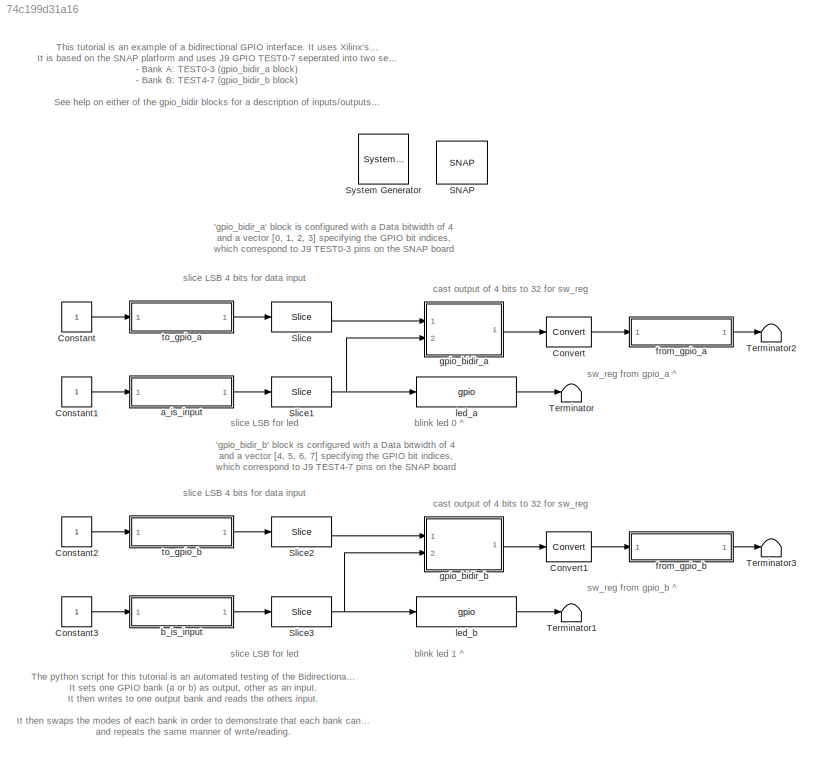
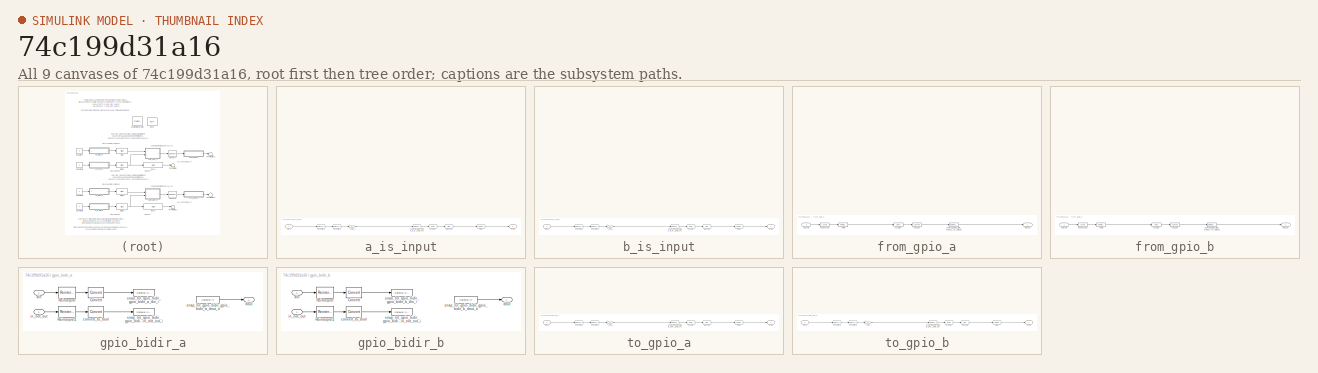
[diagram: thumbnail index - all 9 canvases of the model, root first then tree order]
MODEL slx_74c199d31a16
KIND model
CONFIG AbsTol = auto
CONFIG EnableMultiTasking = off
CONFIG FixedStep = auto
CONFIG MaxStep = auto
CONFIG MinStep = auto
CONFIG RelTol = 1e-3
CONFIG SampleTimeConstraint = Unconstrained
CONFIG Solver = VariableStepDiscrete
CONFIG SolverName = VariableStepDiscrete
CONFIG StartTime = 0.0
CONFIG StopTime = 10.0
BLOCK [Reference]  System Generator  REF=xbsIndex_r4/ System Generator
  AttributesFormatString = System\nGenerator
  Ports = []
  SourceBlock = xbsIndex_r4/ System Generator
  SourceType = Xilinx System Generator Block
  Tag = genX
  UserDataPersistent = on
BLOCK [Constant] Constant
BLOCK [Constant] Constant1
BLOCK [Constant] Constant2
BLOCK [Constant] Constant3
BLOCK [Reference] Convert  REF=xbsIndex_r4/Convert
  Ports = [1, 1]
  SourceBlock = xbsIndex_r4/Convert
  SourceType = Xilinx Type Converter Block
BLOCK [Reference] Convert1  REF=xbsIndex_r4/Convert
  Ports = [1, 1]
  SourceBlock = xbsIndex_r4/Convert
  SourceType = Xilinx Type Converter Block
BLOCK [Reference] SNAP  REF=xps_library/Platforms/SNAP  (lib defined in mdl_00b5cec29cd0, mdl_02ab6ecaa3d1, +5 more)
  Ports = []
  SourceBlock = xps_library/Platforms/SNAP
  SourceProductName = CASPER XPS Blockset
  SourceType = xsg core config
  Tag = xps:xsg
BLOCK [Reference] Slice  REF=xbsIndex_r4/Slice
  Ports = [1, 1]
  SourceBlock = xbsIndex_r4/Slice
  SourceType = Xilinx Bit Slice Extractor Block
BLOCK [Reference] Slice1  REF=xbsIndex_r4/Slice
  Ports = [1, 1]
  SourceBlock = xbsIndex_r4/Slice
  SourceType = Xilinx Bit Slice Extractor Block
BLOCK [Reference] Slice2  REF=xbsIndex_r4/Slice
  Ports = [1, 1]
  SourceBlock = xbsIndex_r4/Slice
  SourceType = Xilinx Bit Slice Extractor Block
BLOCK [Reference] Slice3  REF=xbsIndex_r4/Slice
  Ports = [1, 1]
  SourceBlock = xbsIndex_r4/Slice
  SourceType = Xilinx Bit Slice Extractor Block
BLOCK [Terminator] Terminator
BLOCK [Terminator] Terminator1
BLOCK [Terminator] Terminator2
BLOCK [Terminator] Terminator3
BLOCK [SubSystem] a_is_input
  AncestorBlock = xps_library/Memory/software_register
  AttributesFormatString = 1input:uf32.0 = 32 bits
  Ports = [1, 1]
  RequestExecContextInheritance = off
  Tag = xps:sw_reg
BLOCK [DataTypeConversion] a_is_input/convert1_1
  LockScale = on
  OutDataTypeStr = fixdt('ufix32_En0')
  RndMeth = Floor
  SaturateOnIntegerOverflow = off
BLOCK [DataTypeConversion] a_is_input/convert2_1
  ConvertRealWorld = Stored Integer (SI)
  LockScale = on
  OutDataTypeStr = fixdt('ufix32_En0')
  RndMeth = Floor
  SaturateOnIntegerOverflow = off
BLOCK [Gain] a_is_input/gain_1
  OutDataTypeStr = Inherit: Inherit via internal rule
  ParamDataTypeStr = Inherit: Inherit via internal rule
  SaturateOnIntegerOverflow = off
BLOCK [Outport] a_is_input/in_reg
  IconDisplay = Port number
BLOCK [Reference] a_is_input/io_delay  REF=xbsIndex_r4/Delay
  Ports = [1, 1]
  SourceBlock = xbsIndex_r4/Delay
  SourceType = Xilinx Delay Block
BLOCK [Reference] a_is_input/reint1  REF=xbsIndex_r4/Reinterpret
  Ports = [1, 1]
  SourceBlock = xbsIndex_r4/Reinterpret
  SourceType = Xilinx Type Reinterpreter Block
BLOCK [Inport] a_is_input/sim_1
  IconDisplay = Port number
BLOCK [Reference] a_is_input/slice_reg  REF=xbsIndex_r4/Slice
  Ports = [1, 1]
  SourceBlock = xbsIndex_r4/Slice
  SourceType = Xilinx Bit Slice Extractor Block
BLOCK [Reference] a_is_input/snap_tut_gpio_bidir_a_is_input_user_data_out  REF=xbsIndex_r4/Gateway In
  Ports = [1, 1]
  SourceBlock = xbsIndex_r4/Gateway In
  SourceType = Xilinx Gateway In Block
BLOCK [SubSystem] b_is_input
  AncestorBlock = xps_library/Memory/software_register
  AttributesFormatString = 1input:uf32.0 = 32 bits
  Ports = [1, 1]
  RequestExecContextInheritance = off
  Tag = xps:sw_reg
BLOCK [DataTypeConversion] b_is_input/convert1_1
  LockScale = on
  OutDataTypeStr = fixdt('ufix32_En0')
  RndMeth = Floor
  SaturateOnIntegerOverflow = off
BLOCK [DataTypeConversion] b_is_input/convert2_1
  ConvertRealWorld = Stored Integer (SI)
  LockScale = on
  OutDataTypeStr = fixdt('ufix32_En0')
  RndMeth = Floor
  SaturateOnIntegerOverflow = off
BLOCK [Gain] b_is_input/gain_1
  OutDataTypeStr = Inherit: Inherit via internal rule
  ParamDataTypeStr = Inherit: Inherit via internal rule
  SaturateOnIntegerOverflow = off
BLOCK [Outport] b_is_input/in_reg
  IconDisplay = Port number
BLOCK [Reference] b_is_input/io_delay  REF=xbsIndex_r4/Delay
  Ports = [1, 1]
  SourceBlock = xbsIndex_r4/Delay
  SourceType = Xilinx Delay Block
BLOCK [Reference] b_is_input/reint1  REF=xbsIndex_r4/Reinterpret
  Ports = [1, 1]
  SourceBlock = xbsIndex_r4/Reinterpret
  SourceType = Xilinx Type Reinterpreter Block
BLOCK [Inport] b_is_input/sim_1
  IconDisplay = Port number
BLOCK [Reference] b_is_input/slice_reg  REF=xbsIndex_r4/Slice
  Ports = [1, 1]
  SourceBlock = xbsIndex_r4/Slice
  SourceType = Xilinx Bit Slice Extractor Block
BLOCK [Reference] b_is_input/snap_tut_gpio_bidir_b_is_input_user_data_out  REF=xbsIndex_r4/Gateway In
  Ports = [1, 1]
  SourceBlock = xbsIndex_r4/Gateway In
  SourceType = Xilinx Gateway In Block
BLOCK [SubSystem] from_gpio_a
  AncestorBlock = xps_library/Memory/software_register
  AttributesFormatString = 1output:uf32.0 = 32 bits
  Ports = [1, 1]
  RequestExecContextInheritance = off
  Tag = xps:sw_reg
BLOCK [Reference] from_gpio_a/assert_reg  REF=xbsIndex_r4/Assert
  Ports = [1, 1]
  SourceBlock = xbsIndex_r4/Assert
  SourceType = Xilinx Assert Block
BLOCK [Reference] from_gpio_a/cast_gw  REF=xbsIndex_r4/Convert
  Ports = [1, 1]
  SourceBlock = xbsIndex_r4/Convert
  SourceType = Xilinx Type Converter Block
BLOCK [Reference] from_gpio_a/io_delay  REF=xbsIndex_r4/Delay
  Ports = [1, 1]
  SourceBlock = xbsIndex_r4/Delay
  SourceType = Xilinx Delay Block
BLOCK [Inport] from_gpio_a/out_reg
  IconDisplay = Port number
BLOCK [Reference] from_gpio_a/reint1  REF=xbsIndex_r4/Reinterpret
  Ports = [1, 1]
  SourceBlock = xbsIndex_r4/Reinterpret
  SourceType = Xilinx Type Reinterpreter Block
BLOCK [Outport] from_gpio_a/sim_out
  IconDisplay = Port number
BLOCK [Reference] from_gpio_a/snap_tut_gpio_bidir_from_gpio_a_user_data_in  REF=xbsIndex_r4/Gateway Out
  Ports = [1, 1]
  SourceBlock = xbsIndex_r4/Gateway Out
  SourceType = Xilinx Gateway Out Block
BLOCK [SubSystem] from_gpio_b
  AncestorBlock = xps_library/Memory/software_register
  AttributesFormatString = 1output:uf32.0 = 32 bits
  Ports = [1, 1]
  RequestExecContextInheritance = off
  Tag = xps:sw_reg
BLOCK [Reference] from_gpio_b/assert_reg  REF=xbsIndex_r4/Assert
  Ports = [1, 1]
  SourceBlock = xbsIndex_r4/Assert
  SourceType = Xilinx Assert Block
BLOCK [Reference] from_gpio_b/cast_gw  REF=xbsIndex_r4/Convert
  Ports = [1, 1]
  SourceBlock = xbsIndex_r4/Convert
  SourceType = Xilinx Type Converter Block
BLOCK [Reference] from_gpio_b/io_delay  REF=xbsIndex_r4/Delay
  Ports = [1, 1]
  SourceBlock = xbsIndex_r4/Delay
  SourceType = Xilinx Delay Block
BLOCK [Inport] from_gpio_b/out_reg
  IconDisplay = Port number
BLOCK [Reference] from_gpio_b/reint1  REF=xbsIndex_r4/Reinterpret
  Ports = [1, 1]
  SourceBlock = xbsIndex_r4/Reinterpret
  SourceType = Xilinx Type Reinterpreter Block
BLOCK [Outport] from_gpio_b/sim_out
  IconDisplay = Port number
BLOCK [Reference] from_gpio_b/snap_tut_gpio_bidir_from_gpio_b_user_data_in  REF=xbsIndex_r4/Gateway Out
  Ports = [1, 1]
  SourceBlock = xbsIndex_r4/Gateway Out
  SourceType = Xilinx Gateway Out Block
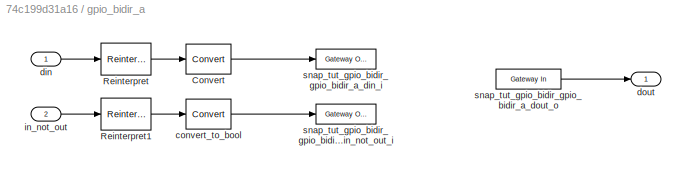
BLOCK [SubSystem] gpio_bidir_a
  Ports = [2, 1]
  RequestExecContextInheritance = off
  Tag = xps:gpio_bidir
BLOCK [Reference] gpio_bidir_a/Convert  REF=xbsIndex_r4/Convert
  Ports = [1, 1]
  SourceBlock = xbsIndex_r4/Convert
  SourceType = Xilinx Type Converter Block
BLOCK [Reference] gpio_bidir_a/Reinterpret  REF=xbsIndex_r4/Reinterpret
  Ports = [1, 1]
  SourceBlock = xbsIndex_r4/Reinterpret
  SourceType = Xilinx Type Reinterpreter Block
BLOCK [Reference] gpio_bidir_a/Reinterpret1  REF=xbsIndex_r4/Reinterpret
  Ports = [1, 1]
  SourceBlock = xbsIndex_r4/Reinterpret
  SourceType = Xilinx Type Reinterpreter Block
BLOCK [Reference] gpio_bidir_a/convert_to_bool  REF=xbsIndex_r4/Convert
  Ports = [1, 1]
  SourceBlock = xbsIndex_r4/Convert
  SourceType = Xilinx Type Converter Block
BLOCK [Inport] gpio_bidir_a/din
  IconDisplay = Port number
BLOCK [Outport] gpio_bidir_a/dout
  IconDisplay = Port number
BLOCK [Inport] gpio_bidir_a/in_not_out
  IconDisplay = Port number
  Port = 2
BLOCK [Reference] gpio_bidir_a/snap_tut_gpio_bidir_gpio_bidir_a_din_i  REF=xbsIndex_r4/Gateway Out
  Ports = [1, 1]
  SourceBlock = xbsIndex_r4/Gateway Out
  SourceType = Xilinx Gateway Out Block
BLOCK [Reference] gpio_bidir_a/snap_tut_gpio_bidir_gpio_bidir_a_dout_o  REF=xbsIndex_r4/Gateway In
  Ports = [1, 1]
  SourceBlock = xbsIndex_r4/Gateway In
  SourceType = Xilinx Gateway In Block
BLOCK [Reference] gpio_bidir_a/snap_tut_gpio_bidir_gpio_bidir_a_in_not_out_i  REF=xbsIndex_r4/Gateway Out
  Ports = [1, 1]
  SourceBlock = xbsIndex_r4/Gateway Out
  SourceType = Xilinx Gateway Out Block
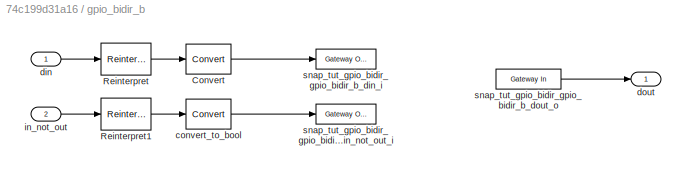
BLOCK [SubSystem] gpio_bidir_b
  Ports = [2, 1]
  RequestExecContextInheritance = off
  Tag = xps:gpio_bidir
BLOCK [Reference] gpio_bidir_b/Convert  REF=xbsIndex_r4/Convert
  Ports = [1, 1]
  SourceBlock = xbsIndex_r4/Convert
  SourceType = Xilinx Type Converter Block
BLOCK [Reference] gpio_bidir_b/Reinterpret  REF=xbsIndex_r4/Reinterpret
  Ports = [1, 1]
  SourceBlock = xbsIndex_r4/Reinterpret
  SourceType = Xilinx Type Reinterpreter Block
BLOCK [Reference] gpio_bidir_b/Reinterpret1  REF=xbsIndex_r4/Reinterpret
  Ports = [1, 1]
  SourceBlock = xbsIndex_r4/Reinterpret
  SourceType = Xilinx Type Reinterpreter Block
BLOCK [Reference] gpio_bidir_b/convert_to_bool  REF=xbsIndex_r4/Convert
  Ports = [1, 1]
  SourceBlock = xbsIndex_r4/Convert
  SourceType = Xilinx Type Converter Block
BLOCK [Inport] gpio_bidir_b/din
  IconDisplay = Port number
BLOCK [Outport] gpio_bidir_b/dout
  IconDisplay = Port number
BLOCK [Inport] gpio_bidir_b/in_not_out
  IconDisplay = Port number
  Port = 2
BLOCK [Reference] gpio_bidir_b/snap_tut_gpio_bidir_gpio_bidir_b_din_i  REF=xbsIndex_r4/Gateway Out
  Ports = [1, 1]
  SourceBlock = xbsIndex_r4/Gateway Out
  SourceType = Xilinx Gateway Out Block
BLOCK [Reference] gpio_bidir_b/snap_tut_gpio_bidir_gpio_bidir_b_dout_o  REF=xbsIndex_r4/Gateway In
  Ports = [1, 1]
  SourceBlock = xbsIndex_r4/Gateway In
  SourceType = Xilinx Gateway In Block
BLOCK [Reference] gpio_bidir_b/snap_tut_gpio_bidir_gpio_bidir_b_in_not_out_i  REF=xbsIndex_r4/Gateway Out
  Ports = [1, 1]
  SourceBlock = xbsIndex_r4/Gateway Out
  SourceType = Xilinx Gateway Out Block
BLOCK [Reference] led_a  REF=xps_library/IO/gpio  (lib defined in mdl_00b5cec29cd0, mdl_02ab6ecaa3d1, +5 more)
  Ports = [1, 1]
  SourceBlock = xps_library/IO/gpio
  SourceProductName = CASPER XPS Blockset
  SourceType = gpio
  Tag = xps:gpio
BLOCK [Reference] led_b  REF=xps_library/IO/gpio  (lib defined in mdl_00b5cec29cd0, mdl_02ab6ecaa3d1, +5 more)
  Ports = [1, 1]
  SourceBlock = xps_library/IO/gpio
  SourceProductName = CASPER XPS Blockset
  SourceType = gpio
  Tag = xps:gpio
BLOCK [SubSystem] to_gpio_a
  AncestorBlock = xps_library/Memory/software_register
  AttributesFormatString = 1input:uf32.0 = 32 bits
  Ports = [1, 1]
  RequestExecContextInheritance = off
  Tag = xps:sw_reg
BLOCK [DataTypeConversion] to_gpio_a/convert1_1
  LockScale = on
  OutDataTypeStr = fixdt('ufix32_En0')
  RndMeth = Floor
  SaturateOnIntegerOverflow = off
BLOCK [DataTypeConversion] to_gpio_a/convert2_1
  ConvertRealWorld = Stored Integer (SI)
  LockScale = on
  OutDataTypeStr = fixdt('ufix32_En0')
  RndMeth = Floor
  SaturateOnIntegerOverflow = off
BLOCK [Gain] to_gpio_a/gain_1
  OutDataTypeStr = Inherit: Inherit via internal rule
  ParamDataTypeStr = Inherit: Inherit via internal rule
  SaturateOnIntegerOverflow = off
BLOCK [Outport] to_gpio_a/in_reg
  IconDisplay = Port number
BLOCK [Reference] to_gpio_a/io_delay  REF=xbsIndex_r4/Delay
  Ports = [1, 1]
  SourceBlock = xbsIndex_r4/Delay
  SourceType = Xilinx Delay Block
BLOCK [Reference] to_gpio_a/reint1  REF=xbsIndex_r4/Reinterpret
  Ports = [1, 1]
  SourceBlock = xbsIndex_r4/Reinterpret
  SourceType = Xilinx Type Reinterpreter Block
BLOCK [Inport] to_gpio_a/sim_1
  IconDisplay = Port number
BLOCK [Reference] to_gpio_a/slice_reg  REF=xbsIndex_r4/Slice
  Ports = [1, 1]
  SourceBlock = xbsIndex_r4/Slice
  SourceType = Xilinx Bit Slice Extractor Block
BLOCK [Reference] to_gpio_a/snap_tut_gpio_bidir_to_gpio_a_user_data_out  REF=xbsIndex_r4/Gateway In
  Ports = [1, 1]
  SourceBlock = xbsIndex_r4/Gateway In
  SourceType = Xilinx Gateway In Block
BLOCK [SubSystem] to_gpio_b
  AncestorBlock = xps_library/Memory/software_register
  AttributesFormatString = 1input:uf32.0 = 32 bits
  Ports = [1, 1]
  RequestExecContextInheritance = off
  Tag = xps:sw_reg
BLOCK [DataTypeConversion] to_gpio_b/convert1_1
  LockScale = on
  OutDataTypeStr = fixdt('ufix32_En0')
  RndMeth = Floor
  SaturateOnIntegerOverflow = off
BLOCK [DataTypeConversion] to_gpio_b/convert2_1
  ConvertRealWorld = Stored Integer (SI)
  LockScale = on
  OutDataTypeStr = fixdt('ufix32_En0')
  RndMeth = Floor
  SaturateOnIntegerOverflow = off
BLOCK [Gain] to_gpio_b/gain_1
  OutDataTypeStr = Inherit: Inherit via internal rule
  ParamDataTypeStr = Inherit: Inherit via internal rule
  SaturateOnIntegerOverflow = off
BLOCK [Outport] to_gpio_b/in_reg
  IconDisplay = Port number
BLOCK [Reference] to_gpio_b/io_delay  REF=xbsIndex_r4/Delay
  Ports = [1, 1]
  SourceBlock = xbsIndex_r4/Delay
  SourceType = Xilinx Delay Block
BLOCK [Reference] to_gpio_b/reint1  REF=xbsIndex_r4/Reinterpret
  Ports = [1, 1]
  SourceBlock = xbsIndex_r4/Reinterpret
  SourceType = Xilinx Type Reinterpreter Block
BLOCK [Inport] to_gpio_b/sim_1
  IconDisplay = Port number
BLOCK [Reference] to_gpio_b/slice_reg  REF=xbsIndex_r4/Slice
  Ports = [1, 1]
  SourceBlock = xbsIndex_r4/Slice
  SourceType = Xilinx Bit Slice Extractor Block
BLOCK [Reference] to_gpio_b/snap_tut_gpio_bidir_to_gpio_b_user_data_out  REF=xbsIndex_r4/Gateway In
  Ports = [1, 1]
  SourceBlock = xbsIndex_r4/Gateway In
  SourceType = Xilinx Gateway In Block
ANNOTATION (root): 'gpio_bidir_a' block is configured with a Data bitwidth of 4 and a vector [0, 1, 2, 3] specifying the GPIO bit indices, which correspond to J9 TEST0-3 pins on the SNAP board
ANNOTATION (root): 'gpio_bidir_b' block is configured with a Data bitwidth of 4 and a vector [4, 5, 6, 7] specifying the GPIO bit indices, which correspond to J9 TEST4-7 pins on the SNAP board
ANNOTATION (root): The python script for this tutorial is an automated testing of the Bidirectional GPIO block here. It sets one GPIO bank (a or b) as output, other as an input. It then writes to one output bank and reads the others input. It then swaps the modes of each bank in order to demonstrate that each bank can be either an input or output (bidirectional) and repeats the same manner of write/reading.
ANNOTATION (root): This tutorial is an example of a bidirectional GPIO interface. It uses Xilinx's IOBUF instance for Verilog. It is based on the SNAP platform and uses J9 GPIO TEST0-7 seperated into two separate banks: - Bank A: TEST0-3 (gpio_bidir_a block) - Bank B: TEST4-7 (gpio_bidir_b block) See help on either of the gpio_bidir blocks for a description of inputs/outputs and further description.
ANNOTATION (root): blink led 0 ^
ANNOTATION (root): blink led 1 ^
ANNOTATION (root): cast output of 4 bits to 32 for sw_reg
ANNOTATION (root): slice LSB 4 bits for data input
ANNOTATION (root): slice LSB for led
ANNOTATION (root): sw_reg from gpio_a ^
ANNOTATION (root): sw_reg from gpio_b ^
LINE Constant1:1 -> a_is_input:1
LINE Constant2:1 -> to_gpio_b:1
LINE Constant3:1 -> b_is_input:1
LINE Constant:1 -> to_gpio_a:1
LINE Convert1:1 -> from_gpio_b:1
LINE Convert:1 -> from_gpio_a:1
NET Slice1:1 -> gpio_bidir_a:2, led_a:1
LINE Slice2:1 -> gpio_bidir_b:1
NET Slice3:1 -> gpio_bidir_b:2, led_b:1
LINE Slice:1 -> gpio_bidir_a:1
LINE a_is_input:1 -> Slice1:1
LINE b_is_input:1 -> Slice3:1
LINE from_gpio_a:1 -> Terminator2:1
LINE from_gpio_b:1 -> Terminator3:1
LINE gpio_bidir_a/Convert:1 -> gpio_bidir_a/snap_tut_gpio_bidir_gpio_bidir_a_din_i:1
LINE gpio_bidir_a/Reinterpret1:1 -> gpio_bidir_a/convert_to_bool:1
LINE gpio_bidir_a/Reinterpret:1 -> gpio_bidir_a/Convert:1
LINE gpio_bidir_a/convert_to_bool:1 -> gpio_bidir_a/snap_tut_gpio_bidir_gpio_bidir_a_in_not_out_i:1
LINE gpio_bidir_a/din:1 -> gpio_bidir_a/Reinterpret:1
LINE gpio_bidir_a/in_not_out:1 -> gpio_bidir_a/Reinterpret1:1
LINE gpio_bidir_a/snap_tut_gpio_bidir_gpio_bidir_a_dout_o:1 -> gpio_bidir_a/dout:1
LINE gpio_bidir_a:1 -> Convert:1
LINE gpio_bidir_b/Convert:1 -> gpio_bidir_b/snap_tut_gpio_bidir_gpio_bidir_b_din_i:1
LINE gpio_bidir_b/Reinterpret1:1 -> gpio_bidir_b/convert_to_bool:1
LINE gpio_bidir_b/Reinterpret:1 -> gpio_bidir_b/Convert:1
LINE gpio_bidir_b/convert_to_bool:1 -> gpio_bidir_b/snap_tut_gpio_bidir_gpio_bidir_b_in_not_out_i:1
LINE gpio_bidir_b/din:1 -> gpio_bidir_b/Reinterpret:1
LINE gpio_bidir_b/in_not_out:1 -> gpio_bidir_b/Reinterpret1:1
LINE gpio_bidir_b/snap_tut_gpio_bidir_gpio_bidir_b_dout_o:1 -> gpio_bidir_b/dout:1
LINE gpio_bidir_b:1 -> Convert1:1
LINE led_a:1 -> Terminator:1
LINE led_b:1 -> Terminator1:1
LINE to_gpio_a:1 -> Slice:1
LINE to_gpio_b:1 -> Slice2:1
note: NET lines group one-source signal fan-out (src -> all destinations, sorted); 1:1 wires keep LINE
